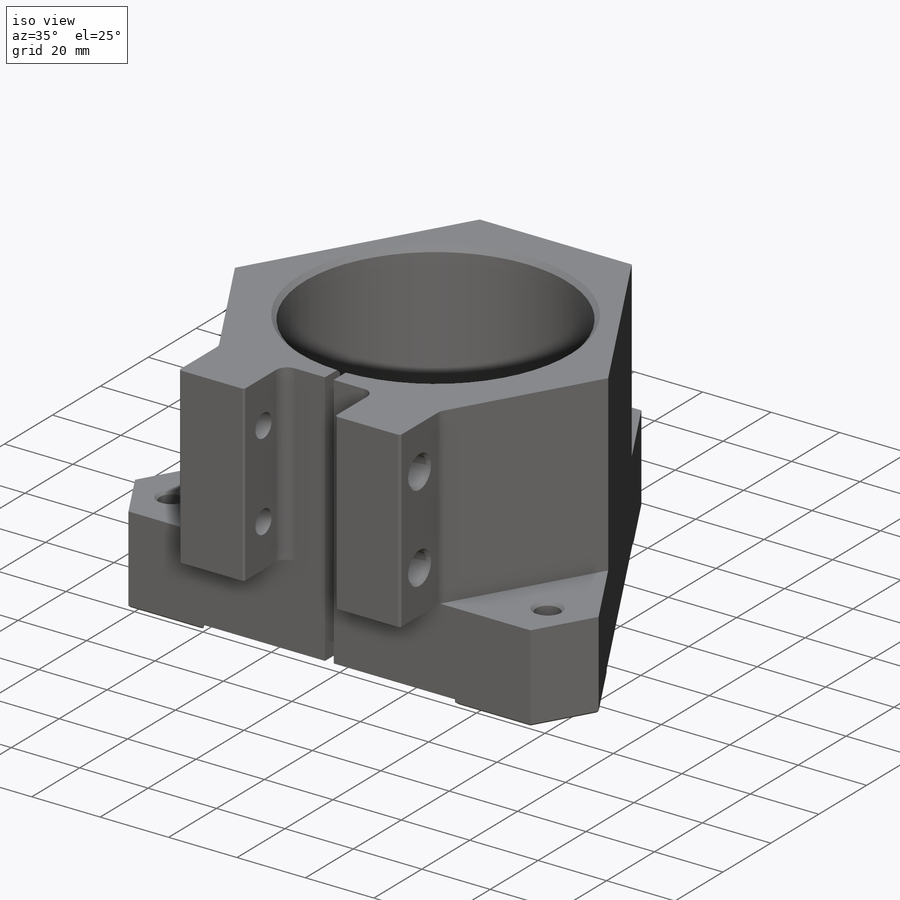
[diagram: iso view]
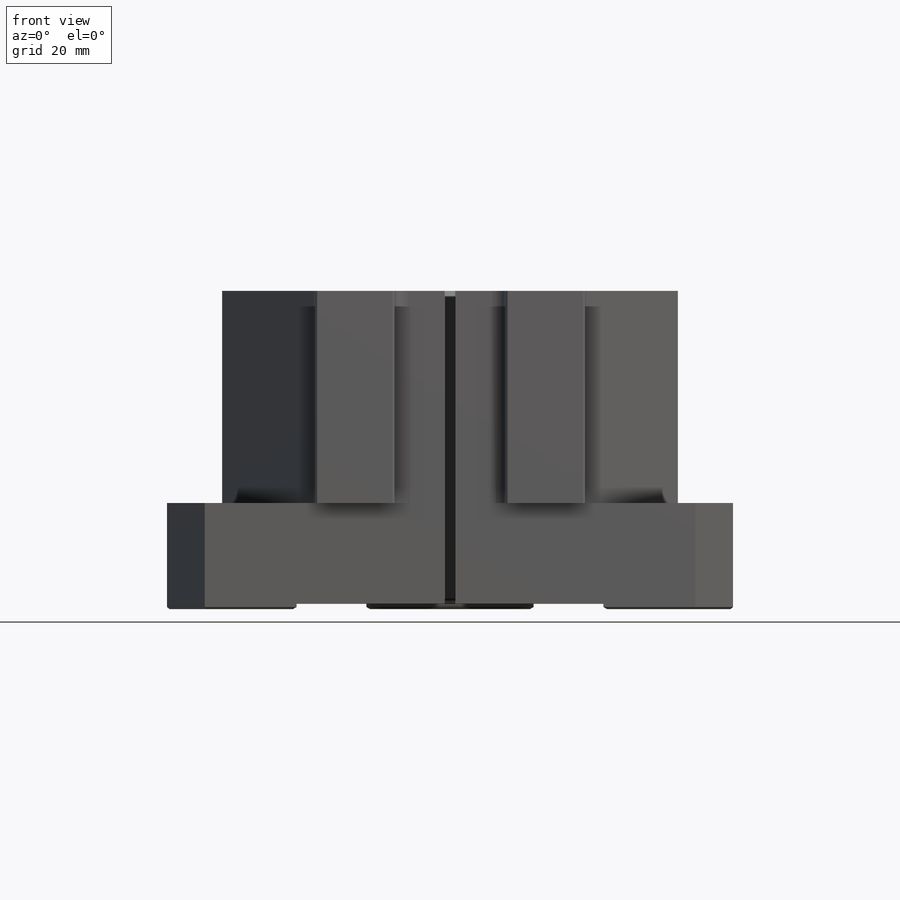
[diagram: front view]
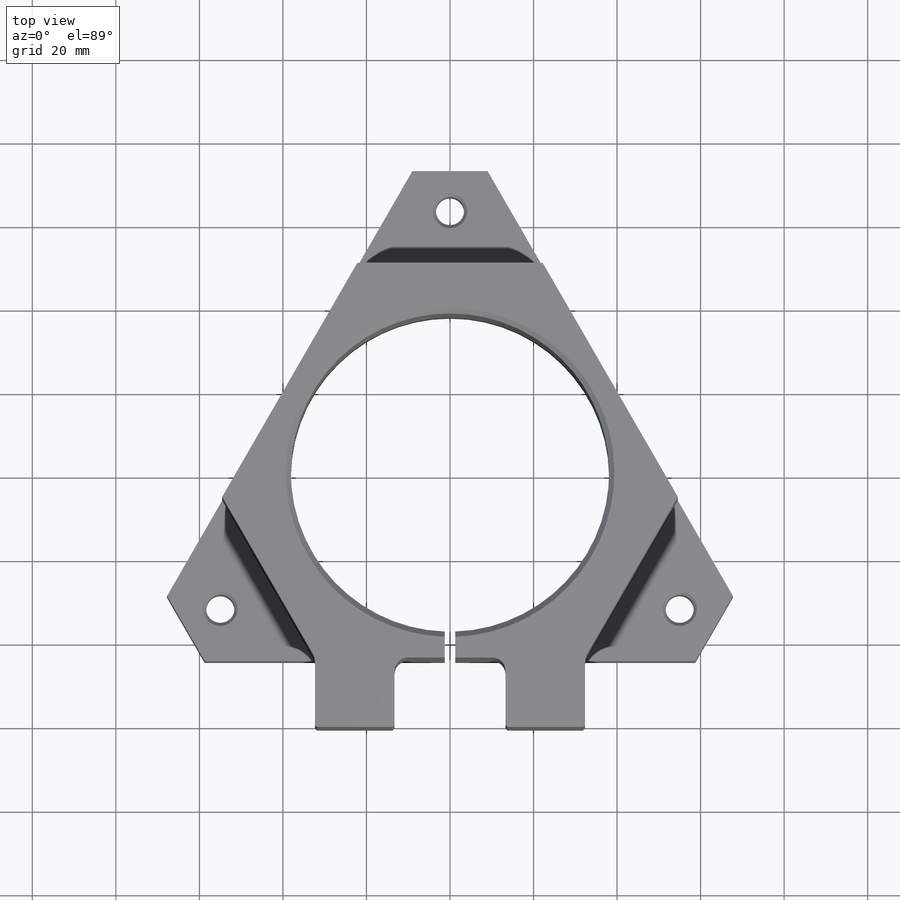
[diagram: top view]
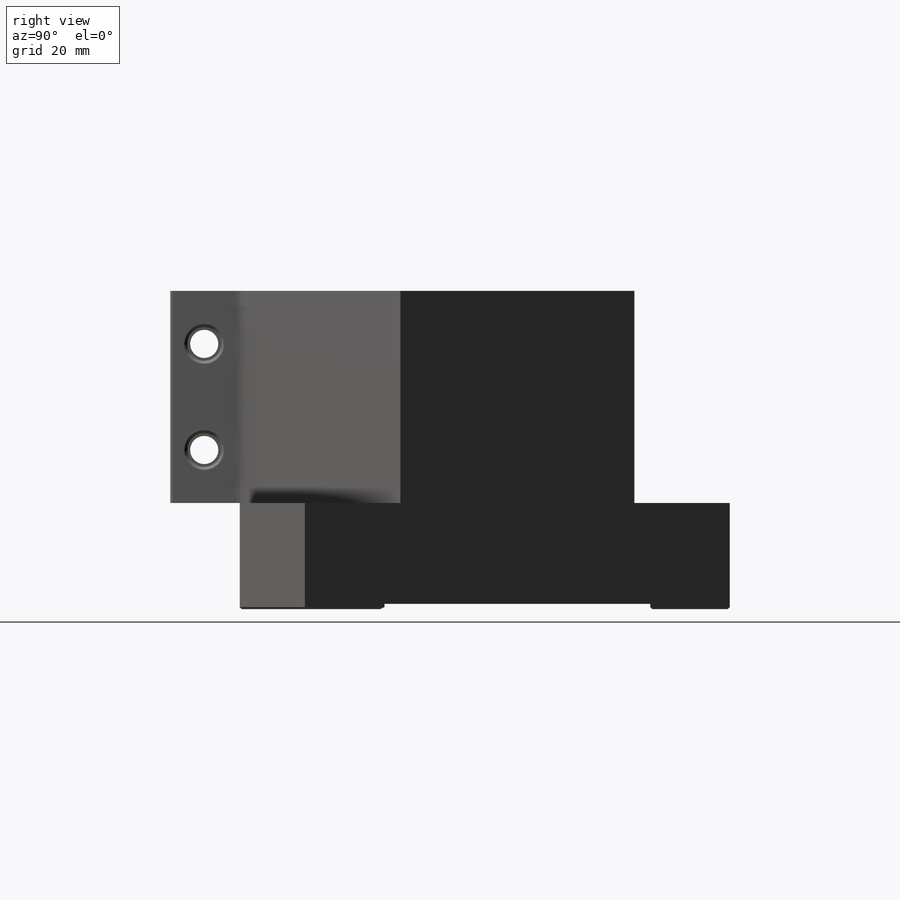
[diagram: right view]
SOLIDWORKS PART (.sldprt)
format: sldprt  version: not decoded by parser v0  size: 650,240 bytes
history: native  units: mm
features: sketch x16, cut_extrude x9, chamfer x4, hole x3, thread x3, material x1, extrude x1, plane x1, fillet x1 + 1 further entry (+13 scaffold rows collapsed)
feature tree (53):
  scaffold x13  (default folders/planes/origin — collapsed)
  material  "6061-T6 Al"
  "Origin"  ID=-1
  sketch  "Sketch1"  dims[c1.D1=76.2mm c1.D4=127.0mm c1.D2=60.96mm c1.D3=~112.309657mm c2.D3=30.0deg c2.D4=~112.607781mm c3.D4=60.0deg c3.D5=9.525mm c3.D6=6.223mm c4.D6=44.323mm]
  extrude  "Extrude1"  Depth=88.9mm
  sketch  "Sketch2"  dims[D2=88.646mm D1=0.0mm]
  cut_extrude  "Cut-Extrude1"  Depth=12.7mm
  sketch  "Sketch3"  dims[D1=63.5mm D2=13.335mm]
  cut_extrude  "Cut-Extrude2"  Depth=25.4mm
  sketch  "Sketch4"  dims[D1=2.54mm]
  cut_extrude  "Cut-Extrude3"  [1 undecoded]
  plane  "Plane1"  Offset=12.7mm
  sketch  "Sketch10"  dims[c1.D1=127.0mm c1.D2=~32.365968mm c2.D2=120.0deg c2.D3=25.4mm c2.D4=15.875mm c3.D3=17.78mm]
  cut_extrude  "Cut-Extrude4"  [1 undecoded]
  hole  "Tapped Hole for 1/4-20 Helicoil3"  [1 undecoded]
  sketch  "Sketch27"  dims[c1.D3=127.0mm c1.D1=~44.927677mm c2.D1=120.0deg c2.D2=~58.254736mm c3.D2=120.0deg]
  thread  "Hole Thread3"  Diameter=15.748mm  [1 undecoded]
  thread  "Hole Thread4"  Diameter=15.748mm  [1 undecoded]
  thread  "Hole Thread5"  Diameter=15.748mm  [1 undecoded]
  sketch  "Sketch26"  dims[hole-wizard template sketch: 46 standard entries collapsed; hole parameters kept: c15.Thru Tap Drill Dia.=6.7564mm c15.Thru Tap Drill Depth=25.4mm c15.Near C'Sink Dia.=9.525mm c15.D4=~3.666174mm c15.Near C'Sink Angle=82.0deg c15.Far C'Sink Dia.=8.255mm c15.D6=~9.919017mm c15.Far C'Sink Angle=82.0deg]
  sketch  "Sketch16"  dims[D1=0.0mm D2=0.0mm]
  cut_extrude  "Cut-Extrude7"  [1 undecoded]
  sketch  "Sketch17"
  cut_extrude  "Cut-Extrude10"  [1 undecoded]
  sketch  "Sketch18"
  cut_extrude  "Cut-Extrude13"  [1 undecoded]
  sketch  "Sketch19"  dims[D1=19.05mm]
  cut_extrude  "Cut-Extrude14"  Depth=1.27mm
  chamfer  "Chamfer2"  Distance=1.27mm Angle=45deg
  chamfer  "Chamfer4"  Distance=0.508mm Angle=45deg
  sketch  "Sketch29"  dims[D1=19.05mm]
  cut_extrude  "Cut-Extrude15"  [1 undecoded]
  fillet  "Fillet1"  Radius=3.175mm
  hole  "Tapped Hole for 1/4-20 Helicoil5"  Diameter=6.7564mm Depth=19.05mm
  sketch  "Sketch23"  dims[D1=53.34mm D2=12.7mm D3=25.4mm]
  sketch  "Sketch22"  dims[hole-wizard template sketch: 42 standard entries collapsed; hole parameters kept: c12.Thru Tap Drill Depth=19.05mm c12.Thread Major Dia.=~8.09498mm c12.Thread Depth=15.748mm c12.Near C'Sink Dia.=9.525mm c12.D6=~4.399409mm c12.Near C'Sink Angle=82.0deg]
  hole  "Tapped Hole for 1/4-20 Helicoil4"  Diameter=6.7564mm Depth=19.05mm
  sketch  "Sketch25"
  sketch  "Sketch24"  dims[hole-wizard template sketch: 42 standard entries collapsed; hole parameters kept: c12.Thru Tap Drill Depth=19.05mm c12.Thread Major Dia.=~8.09498mm c12.Thread Depth=15.748mm c12.Near C'Sink Dia.=9.525mm c12.D6=~4.399409mm c12.Near C'Sink Angle=82.0deg]
  chamfer  "Chamfer3"  Distance=0.508mm Angle=45deg
  chamfer  "Chamfer5"  Distance=0.508mm Angle=45deg
decode coverage: 27 of 37 modeling features carry decoded parameters; 1 rows unclassified (native names shown)
note: ~ marks probable driven/reference dimensions
note: 10 parameter values undecoded
summary: no parameter record found for 7 features
note: suppression state not decoded; provenance and decode notes live in map.json
